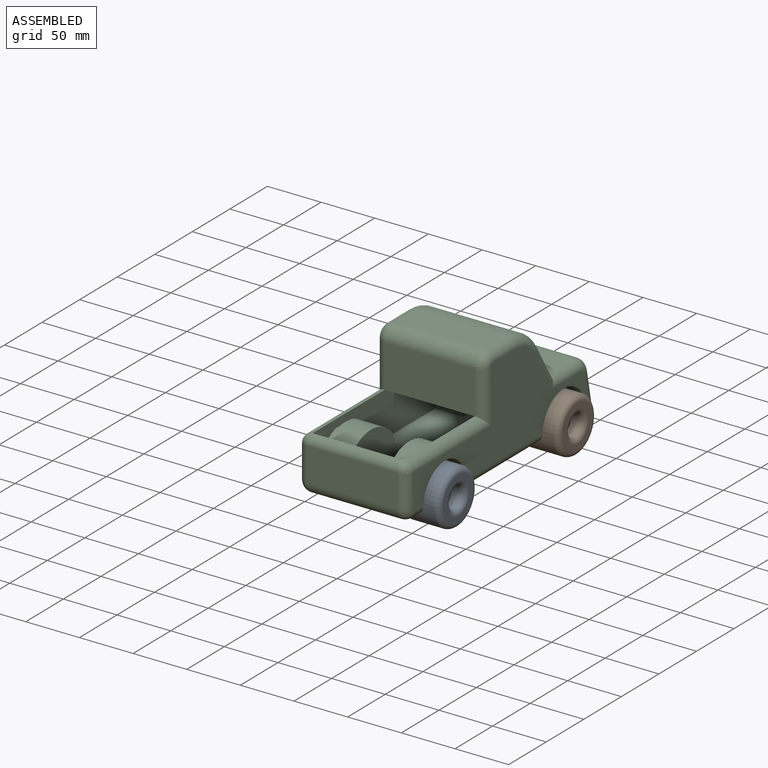
[diagram: assembled view]
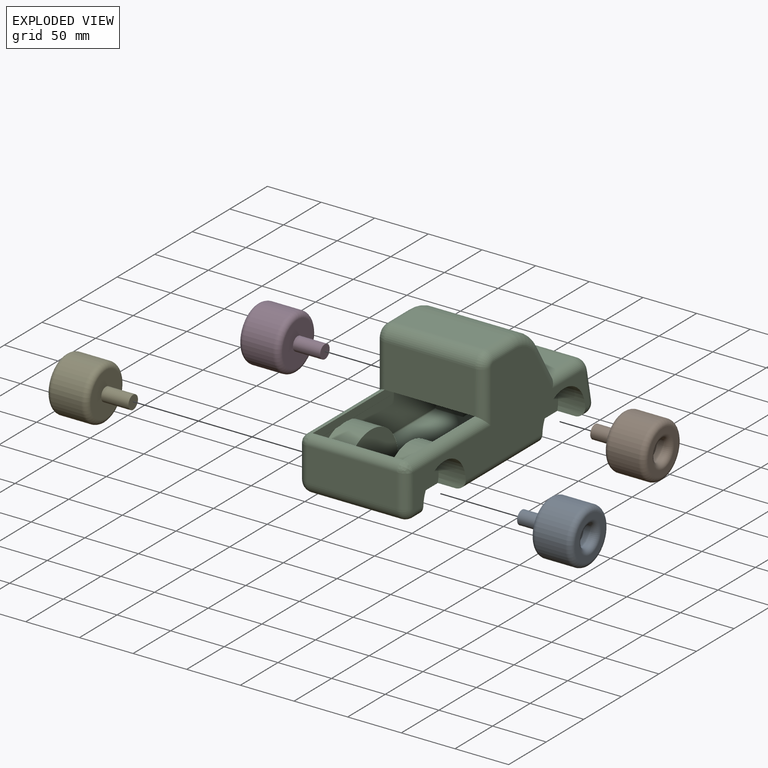
[diagram: exploded view]
GUIDED TOUR — MATED ASSEMBLY (Onshape document 5833278b6b884e10540bb017, AutoMate assembly 5833278b6b884e10540bb017_8e4d6eb2562d53a864982968_b77a20d916181a25f1c98afd_default)

This assembly has 5 components, labeled P0..P4 below (a component is one placed occurrence of a part; the same part can appear more than once), held together by 8 mates. A mate is a constraint between two components; its type names the relative motion it leaves free:
  CYLINDRICAL — leaves both rotation about and translation along the listed axis free,
  PLANAR — leaves sliding in the plane through the listed point (normal = the listed direction) and rotation about that normal free.
Axis/direction vectors are unit vectors and 'through' points are millimeter coordinates, both in the assembly's world frame.

MATES
  1. PLANAR "Planar 3": P2 <-> P3, direction (-1.000, 0.000, 0.000) through (-9.30, 177.85, 35.59) mm
  2. CYLINDRICAL "Cylindrical 1": P2 <-> P0, axis (1.000, 0.000, 0.000) through (41.50, 19.10, 35.59) mm
  3. CYLINDRICAL "Cylindrical 4": P4 <-> P2, axis (1.000, 0.000, 0.000) through (16.10, 19.10, 35.59) mm
  4. PLANAR "Planar 4": P4 <-> P2, direction (1.000, 0.000, 0.000) through (-9.30, 19.10, 35.59) mm
  5. CYLINDRICAL "Cylindrical 3": P3 <-> P2, axis (1.000, 0.000, 0.000) through (16.10, 177.85, 35.59) mm
  6. PLANAR "Planar 1": P2 <-> P0, direction (1.000, 0.000, 0.000) through (41.50, 19.10, 44.24) mm
  7. CYLINDRICAL "Cylindrical 2": P1 <-> P2, axis (-1.000, 0.000, 0.000) through (16.10, 177.85, 35.59) mm
  8. PLANAR "Planar 2": P2 <-> P1, direction (1.000, 0.000, 0.000) through (41.50, 177.85, 44.37) mm

ASSEMBLY ORDER
  1. P2 — the base component [order heuristic]
  2. P4 — core [order heuristic]
  3. P0 [order verified]
  4. P1 [order verified]
  5. P3 [order verified]
Order-tag legend:
  [order verified] — this step's position reverses a verified removal order: the component was checked to insert without passing through the ones already placed.
  [order heuristic] — the first 2 components form the assembly's core: parts whose collision-free extraction could not be verified, listed in mate-graph order.

Of the 5 components, 1 carries the full construction recipe — the FeatureScript program that regenerates the part's solid from scratch; the rest are supplied as boundary geometry only.
Each toured component is shown spotlighted twice — in the assembled view, then in the exploded view, where a leader line traces a displaced component back to its assembled socket (saturated green if recipe-attached, orange if geometry-only; every other component desaturated gray) — followed by its recipe or geometry summary and the mates that hold it.
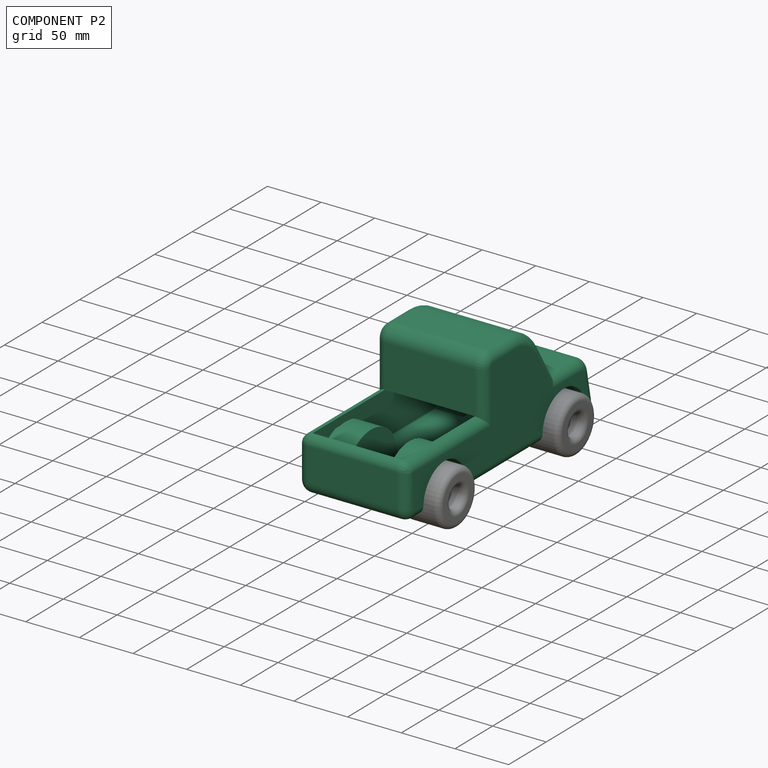
[diagram: component P2 — assembled]
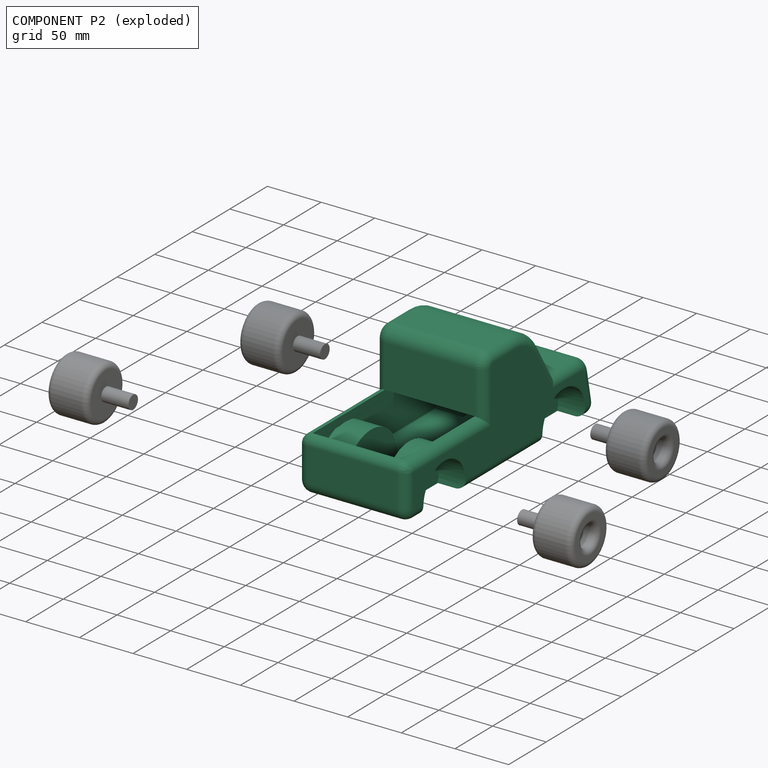
[diagram: component P2 — exploded]
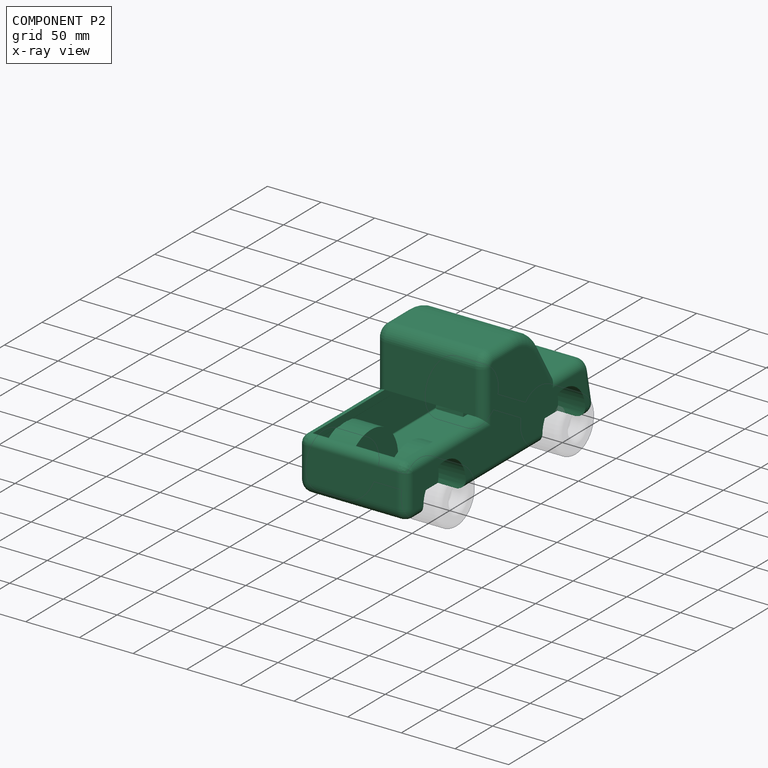
[diagram: component P2 — x-ray view]
COMPONENT P2 — recipe-attached (CADFS 00341112, mesh-verified: the recipe's output STEP matches this component's geometry to below the mesh-comparison resolution (tessellation chordal tolerance ~0.436 mm)).
Held by: PLANAR mate "Planar 3" to P3; CYLINDRICAL mate "Cylindrical 1" to P0; CYLINDRICAL mate "Cylindrical 4" to P4; PLANAR mate "Planar 4" to P4; CYLINDRICAL mate "Cylindrical 3" to P3; PLANAR mate "Planar 1" to P0; CYLINDRICAL mate "Cylindrical 2" to P1; PLANAR mate "Planar 2" to P1.
Construction recipe (FeatureScript — the CAD program that rebuilds this solid; sketch coordinates are in the units given by the * unit suffixes, e.g. mm):

FeatureScript 1549;
import(path : "onshape/std/geometry.fs", version : "1549.0");
import(path : "onshape/std/common.fs", version : "1549.0");
const mm = millimeter;
const VERTEX = EntityType.VERTEX;
const EDGE = EntityType.EDGE;
const FACE = EntityType.FACE;
const BODY = EntityType.BODY;
function v(x, y){return vector(x, y);}
function OD(order){return orderDisambiguation(order);}
function OSD(set){return originalSetDisambiguation(set);}
function TD(topology){return topologyDisambiguation(topology);}
function TDD(query){return trueDependencyDisambiguation(query);}
function sQuery(a, b, c) {return sketchEntityQuery(a, b, c);}

annotation { "Feature Type Name" : "Feature", "Feature Type Description" : "" }
export const myFeature = defineFeature(function(context is Context, id is Id, definition is map)
    precondition{}
    {
        {
            var Q0;
            Q0=qCreatedBy(makeId("Right.planeOp"),FACE);
            var sketch = newSketch(context, id + "F0", { "sketchPlane" : qUnion([Q0])});
            skLineSegment(sketch, "E0.bottom", {"start": v(12.28, 0) * mm, "end": v(242.5, 0) * mm});
            skLineSegment(sketch, "E0.top", {"start": v(7.7, 50.8) * mm, "end": v(103.46, 50.8) * mm});
            skLineSegment(sketch, "E0.left", {"start": v(0, 12.28) * mm, "end": v(0, 43.1) * mm});
            skLineSegment(sketch, "E1.top", {"start": v(144.78, 103.15) * mm, "end": v(115.74, 103.15) * mm});
            skLineSegment(sketch, "E1.right", {"start": v(103.46, 50.8) * mm, "end": v(103.46, 90.86) * mm});
            skLineSegment(sketch, "E2", {"start": v(179.04, 83.9) * mm, "end": v(199.23, 50.8) * mm});
            skLineSegment(sketch, "E3", {"start": v(251.72, 11.28) * mm, "end": v(246.16, 38.78) * mm});
            skArc(sketch, "E4.filletArc", {"start": v(246.16, 38.78) * mm, "mid": v(240.96, 47.41) * mm, "end": v(231.47, 50.8) * mm});
            skArc(sketch, "E5.filletArc", {"start": v(242.5, 0) * mm, "mid": v(249.78, 3.45) * mm, "end": v(251.72, 11.28) * mm});
            skArc(sketch, "E6.filletArc", {"start": v(179.04, 83.9) * mm, "mid": v(164.42, 98) * mm, "end": v(144.78, 103.15) * mm});
            skArc(sketch, "E7.filletArc", {"start": v(115.74, 103.15) * mm, "mid": v(107.06, 99.55) * mm, "end": v(103.46, 90.86) * mm});
            skLineSegment(sketch, "E8.trimOffspring", {"start": v(199.23, 50.8) * mm, "end": v(231.47, 50.8) * mm});
            skPoint(sketch, "E9.visualSharp", {"position": v(0, 0) * mm});
            skArc(sketch, "E9.filletArc", {"start": v(0, 12.28) * mm, "mid": v(3.6, 3.6) * mm, "end": v(12.28, 0) * mm});
            skArc(sketch, "E10.filletArc", {"start": v(7.7, 50.8) * mm, "mid": v(2.26, 48.54) * mm, "end": v(0, 43.1) * mm});
            skSolve(sketch);
        }
        {
            var Q0;
            Q0=makeQuery(id+"F0.imprint","IMPRINT",FACE,{"disambiguationData":[TD([[makeQuery(id+"F0.imprint","IMPRINT",EDGE,{"derivedFrom":sQuery(id+"F0.wireOp",EDGE,"E0.bottom")}),1.0]])]});
            extrude(context, id + "F1", {"entities" : qUnion([Q0]), "depth" : 101.6 * mm});
        }
        {
            var Q0;
            Q0=makeQuery(id+"F1.opExtrude","CAP_FACE",FACE,{"disambiguationData":[OSD([sQuery(id+"F0.wireOp",EDGE,"E0.bottom"),sQuery(id+"F0.wireOp",EDGE,"E0.top"),sQuery(id+"F0.wireOp",EDGE,"E0.left"),sQuery(id+"F0.wireOp",EDGE,"E1.top"),sQuery(id+"F0.wireOp",EDGE,"E1.right"),sQuery(id+"F0.wireOp",EDGE,"E2"),sQuery(id+"F0.wireOp",EDGE,"E3"),sQuery(id+"F0.wireOp",EDGE,"E4.filletArc"),sQuery(id+"F0.wireOp",EDGE,"E5.filletArc"),sQuery(id+"F0.wireOp",EDGE,"E6.filletArc"),sQuery(id+"F0.wireOp",EDGE,"E7.filletArc"),sQuery(id+"F0.wireOp",EDGE,"E8.trimOffspring"),sQuery(id+"F0.wireOp",EDGE,"E9.filletArc"),sQuery(id+"F0.wireOp",EDGE,"E10.filletArc")])],"isStart":false});
            var sketch = newSketch(context, id + "F2", { "sketchPlane" : qUnion([Q0])});
            skLineSegment(sketch, "E11", {"start": v(0, 0) * mm, "end": v(0, 7.62) * mm, "construction": true});
            skLineSegment(sketch, "E12", {"start": v(0, 7.62) * mm, "end": v(50.8, 7.62) * mm, "construction": true});
            skLineSegment(sketch, "E13", {"start": v(50.8, 7.62) * mm, "end": v(209.55, 7.62) * mm, "construction": true});
            skCircle(sketch, "E14", {"center": v(50.8, 7.62) * mm, "radius": 28.26 * mm});
            skCircle(sketch, "E15", {"center": v(209.55, 7.62) * mm, "radius": 28.58 * mm});
            skSolve(sketch);
        }
        {
            var Q0;
            Q0=qSketchRegion(id+"F2",true);
            extrude(context, id + "F3", {"entities" : qUnion([Q0]), "operationType" : NewBodyOperationType.REMOVE, "oppositeDirection" : true, "depth" : 25.4 * mm});
        }
        {
            var Q0;
            Q0=makeQuery(id+"F1.opExtrude","CAP_FACE",FACE,{"disambiguationData":[OSD([sQuery(id+"F0.wireOp",EDGE,"E0.bottom"),sQuery(id+"F0.wireOp",EDGE,"E0.top"),sQuery(id+"F0.wireOp",EDGE,"E0.left"),sQuery(id+"F0.wireOp",EDGE,"E1.top"),sQuery(id+"F0.wireOp",EDGE,"E1.right"),sQuery(id+"F0.wireOp",EDGE,"E2"),sQuery(id+"F0.wireOp",EDGE,"E3"),sQuery(id+"F0.wireOp",EDGE,"E4.filletArc"),sQuery(id+"F0.wireOp",EDGE,"E5.filletArc"),sQuery(id+"F0.wireOp",EDGE,"E6.filletArc"),sQuery(id+"F0.wireOp",EDGE,"E7.filletArc"),sQuery(id+"F0.wireOp",EDGE,"E8.trimOffspring"),sQuery(id+"F0.wireOp",EDGE,"E9.filletArc"),sQuery(id+"F0.wireOp",EDGE,"E10.filletArc")])],"isStart":true});
            var sketch = newSketch(context, id + "F4", { "sketchPlane" : qUnion([Q0])});
            skLineSegment(sketch, "E16", {"start": v(0, 0) * mm, "end": v(0, 7.62) * mm, "construction": true});
            skLineSegment(sketch, "E17", {"start": v(0, 7.62) * mm, "end": v(-50.8, 7.62) * mm, "construction": true});
            skLineSegment(sketch, "E18", {"start": v(-50.8, 7.62) * mm, "end": v(-209.55, 7.62) * mm, "construction": true});
            skCircle(sketch, "E19", {"center": v(-50.8, 7.62) * mm, "radius": 28.58 * mm});
            skCircle(sketch, "E20", {"center": v(-209.55, 7.62) * mm, "radius": 28.58 * mm});
            skSolve(sketch);
        }
        {
            var Q0;
            Q0=qSketchRegion(id+"F4",true);
            extrude(context, id + "F5", {"entities" : qUnion([Q0]), "operationType" : NewBodyOperationType.REMOVE, "oppositeDirection" : true, "depth" : 25.4 * mm});
        }
        {
            var Q0;
            Q0=makeQuery(id+"F5.boolean.opBoolean","COPY",FACE,{"derivedFrom":makeQuery(id+"F5.opExtrude","CAP_FACE",FACE,{"disambiguationData":[OSD([sQuery(id+"F4.wireOp",EDGE,"E20")])],"isStart":false})});
            var sketch = newSketch(context, id + "F6", { "sketchPlane" : qUnion([Q0])});
            skCircle(sketch, "E21", {"center": v(-209.55, 7.62) * mm, "radius": 6.35 * mm});
            skSolve(sketch);
        }
        {
            var Q0;
            Q0=makeQuery(id+"F6.imprint","IMPRINT",FACE,{"disambiguationData":[TD([[makeQuery(id+"F6.imprint","IMPRINT",EDGE,{"derivedFrom":sQuery(id+"F6.wireOp",EDGE,"E21")}),1.0]])]});
            extrude(context, id + "F7", {"entities" : qUnion([Q0]), "operationType" : NewBodyOperationType.REMOVE, "endBound" : BoundingType.UP_TO_NEXT, "oppositeDirection" : true, "depth" : 25.4 * mm});
        }
        {
            var Q0;
            Q0=makeQuery(id+"F5.boolean.opBoolean","COPY",FACE,{"derivedFrom":makeQuery(id+"F5.opExtrude","CAP_FACE",FACE,{"disambiguationData":[OSD([sQuery(id+"F4.wireOp",EDGE,"E19")])],"isStart":false})});
            var sketch = newSketch(context, id + "F8", { "sketchPlane" : qUnion([Q0])});
            skCircle(sketch, "E22", {"center": v(-50.8, 7.62) * mm, "radius": 6.35 * mm});
            skSolve(sketch);
        }
        {
            var Q0;
            Q0=makeQuery(id+"F8.imprint","IMPRINT",FACE,{"disambiguationData":[TD([[makeQuery(id+"F8.imprint","IMPRINT",EDGE,{"derivedFrom":sQuery(id+"F8.wireOp",EDGE,"E22")}),1.0]])]});
            extrude(context, id + "F9", {"entities" : qUnion([Q0]), "operationType" : NewBodyOperationType.REMOVE, "endBound" : BoundingType.UP_TO_NEXT, "oppositeDirection" : true, "depth" : 25.4 * mm});
        }
        {
            var Q0;
            Q0=makeQuery(id+"F1.opExtrude","CAP_EDGE",EDGE,{"disambiguationData":[OSD([sQuery(id+"F0.wireOp",EDGE,"E2")])],"isStart":true});
            var Q1;
            Q1=makeQuery(id+"F1.opExtrude","CAP_EDGE",EDGE,{"disambiguationData":[OSD([sQuery(id+"F0.wireOp",EDGE,"E8.trimOffspring")])],"isStart":true});
            var Q2;
            Q2=makeQuery(id+"F1.opExtrude","CAP_EDGE",EDGE,{"disambiguationData":[OSD([sQuery(id+"F0.wireOp",EDGE,"E0.top")])],"isStart":true});
            var Q3;
            {var subQ0=sQuery(id+"F0.wireOp",EDGE,"E0.bottom");Q3=makeQuery(id+"F5.boolean.opBoolean","SPLIT",EDGE,{"disambiguationData":[TD([makeQuery(id+"F1.opExtrude","SWEPT_FACE",FACE,{"disambiguationData":[OSD([subQ0])]}),makeQuery(id+"F1.opExtrude","CAP_FACE",FACE,{"disambiguationData":[OSD([subQ0,sQuery(id+"F0.wireOp",EDGE,"E0.top"),sQuery(id+"F0.wireOp",EDGE,"E0.left"),sQuery(id+"F0.wireOp",EDGE,"E1.top"),sQuery(id+"F0.wireOp",EDGE,"E1.right"),sQuery(id+"F0.wireOp",EDGE,"E2"),sQuery(id+"F0.wireOp",EDGE,"E3"),sQuery(id+"F0.wireOp",EDGE,"E4.filletArc"),sQuery(id+"F0.wireOp",EDGE,"E5.filletArc"),sQuery(id+"F0.wireOp",EDGE,"E6.filletArc"),sQuery(id+"F0.wireOp",EDGE,"E7.filletArc"),sQuery(id+"F0.wireOp",EDGE,"E8.trimOffspring"),sQuery(id+"F0.wireOp",EDGE,"E9.filletArc"),sQuery(id+"F0.wireOp",EDGE,"E10.filletArc")])],"isStart":true}),makeQuery(id+"F5.opExtrude","SWEPT_FACE",FACE,{"disambiguationData":[OSD([sQuery(id+"F4.wireOp",EDGE,"E19")])]}),makeQuery(id+"F5.opExtrude","SWEPT_FACE",FACE,{"disambiguationData":[OSD([sQuery(id+"F4.wireOp",EDGE,"E20")])]})])],"derivedFrom":makeQuery(id+"F1.opExtrude","CAP_EDGE",EDGE,{"disambiguationData":[OSD([subQ0])],"isStart":true})});}
            var Q4;
            Q4=makeQuery(id+"F1.opExtrude","CAP_EDGE",EDGE,{"disambiguationData":[OSD([sQuery(id+"F0.wireOp",EDGE,"E0.top")])],"isStart":false});
            var Q5;
            Q5=makeQuery(id+"F1.opExtrude","CAP_EDGE",EDGE,{"disambiguationData":[OSD([sQuery(id+"F0.wireOp",EDGE,"E1.right")])],"isStart":false});
            var Q6;
            Q6=makeQuery(id+"F1.opExtrude","CAP_EDGE",EDGE,{"disambiguationData":[OSD([sQuery(id+"F0.wireOp",EDGE,"E8.trimOffspring")])],"isStart":false});
            var Q7;
            {var subQ0=sQuery(id+"F0.wireOp",EDGE,"E0.bottom");Q7=makeQuery(id+"F3.boolean.opBoolean","SPLIT",EDGE,{"disambiguationData":[TD([makeQuery(id+"F1.opExtrude","SWEPT_FACE",FACE,{"disambiguationData":[OSD([subQ0])]}),makeQuery(id+"F1.opExtrude","CAP_FACE",FACE,{"disambiguationData":[OSD([subQ0,sQuery(id+"F0.wireOp",EDGE,"E0.top"),sQuery(id+"F0.wireOp",EDGE,"E0.left"),sQuery(id+"F0.wireOp",EDGE,"E1.top"),sQuery(id+"F0.wireOp",EDGE,"E1.right"),sQuery(id+"F0.wireOp",EDGE,"E2"),sQuery(id+"F0.wireOp",EDGE,"E3"),sQuery(id+"F0.wireOp",EDGE,"E4.filletArc"),sQuery(id+"F0.wireOp",EDGE,"E5.filletArc"),sQuery(id+"F0.wireOp",EDGE,"E6.filletArc"),sQuery(id+"F0.wireOp",EDGE,"E7.filletArc"),sQuery(id+"F0.wireOp",EDGE,"E8.trimOffspring"),sQuery(id+"F0.wireOp",EDGE,"E9.filletArc"),sQuery(id+"F0.wireOp",EDGE,"E10.filletArc")])],"isStart":false}),makeQuery(id+"F3.opExtrude","SWEPT_FACE",FACE,{"disambiguationData":[OSD([sQuery(id+"F2.wireOp",EDGE,"E14")])]}),makeQuery(id+"F3.opExtrude","SWEPT_FACE",FACE,{"disambiguationData":[OSD([sQuery(id+"F2.wireOp",EDGE,"E15")])]})])],"derivedFrom":makeQuery(id+"F1.opExtrude","CAP_EDGE",EDGE,{"disambiguationData":[OSD([subQ0])],"isStart":false})});}
            fillet(context, id + "F10", {"entities" : qUnion([Q0, Q1, Q2, Q3, Q4, Q5, Q6, Q7]), "radius" : 8.9 * mm, "tangentPropagation" : true, "allowEdgeOverflow" : false});
        }
        {
            var Q0;
            Q0=makeQuery(id+"F1.opExtrude","SWEPT_FACE",FACE,{"disambiguationData":[OSD([sQuery(id+"F0.wireOp",EDGE,"E0.top")])]});
            shell(context, id + "F11", {"entities" : qUnion([Q0]), "thickness" : 7.62 * mm});
        }
    });
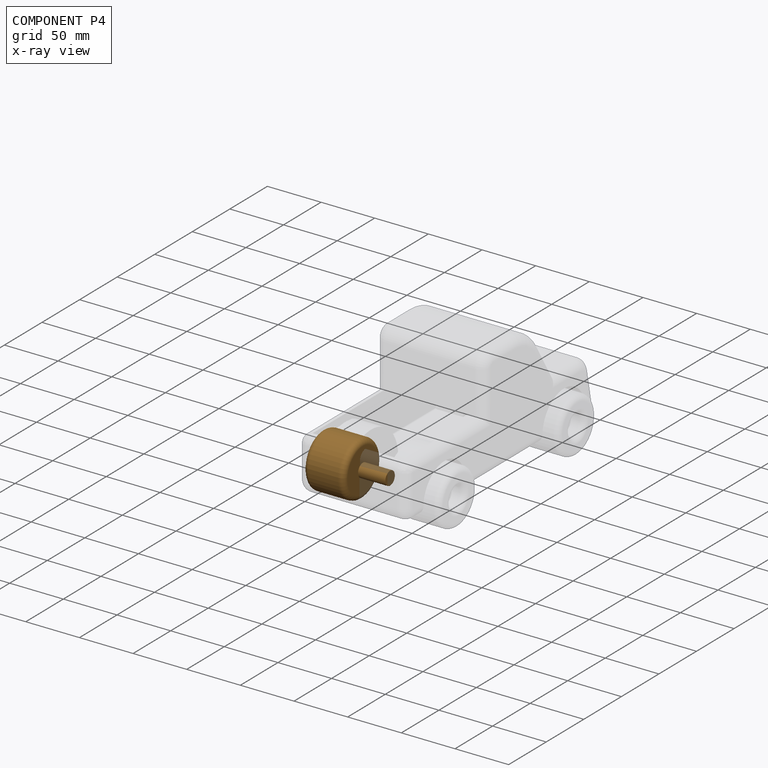
[diagram: component P4 — x-ray view]
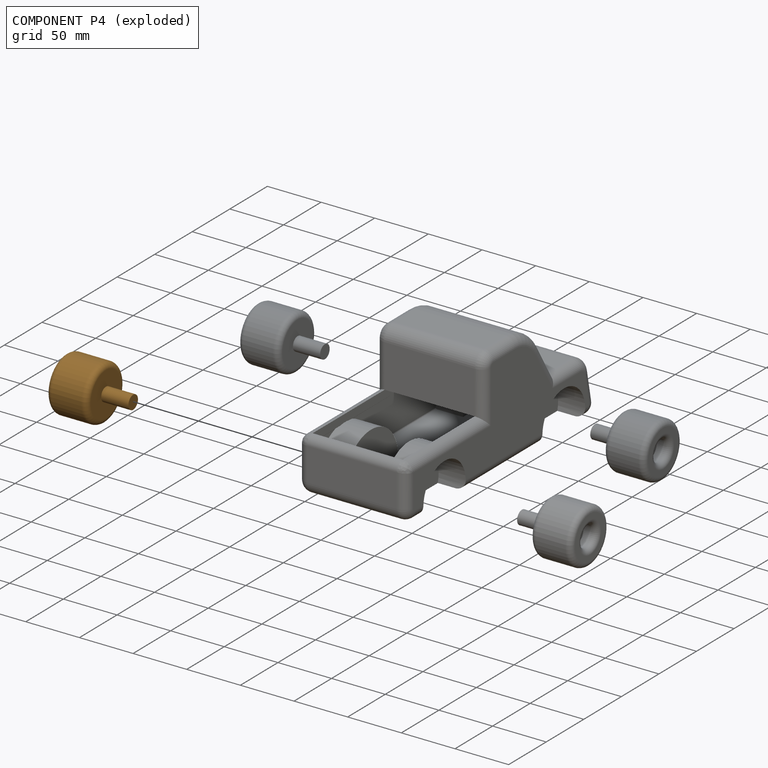
[diagram: component P4 — exploded]
COMPONENT P4 — geometry summary (no construction recipe available for this part):
  bounding box: 63.5 x 55.0 x 55.0 mm
  B-rep topology: 1 solid, 10 faces, 32 edges
  volume: 74760 mm^3 (39% of its bounding box)
  symmetry: revolution-symmetric about the x axis through its bounding-box center; mirror-symmetric across its y mid-plane, z mid-plane
Held by: CYLINDRICAL mate "Cylindrical 4" to P2; PLANAR mate "Planar 4" to P2.
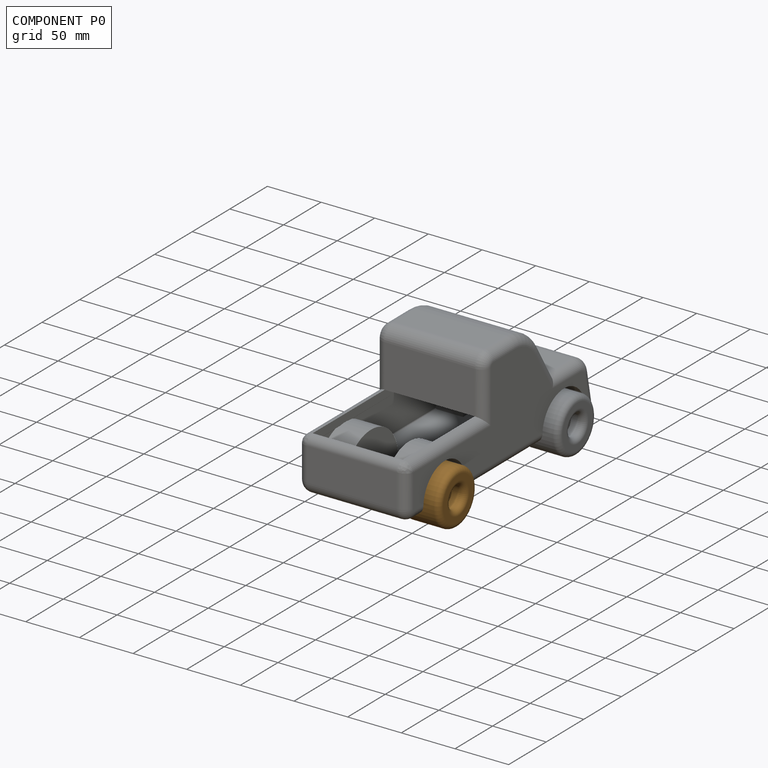
[diagram: component P0 — assembled]
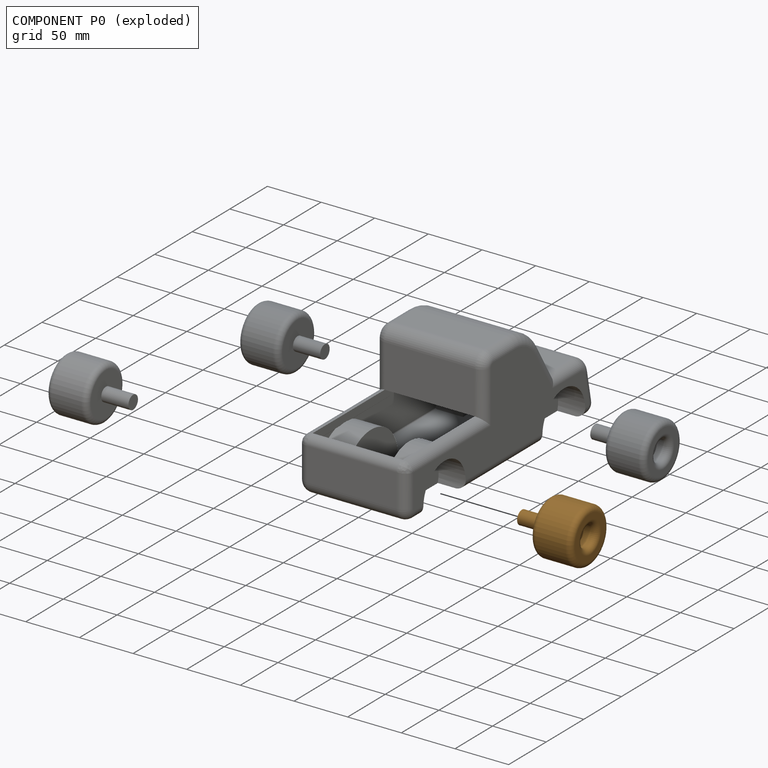
[diagram: component P0 — exploded]
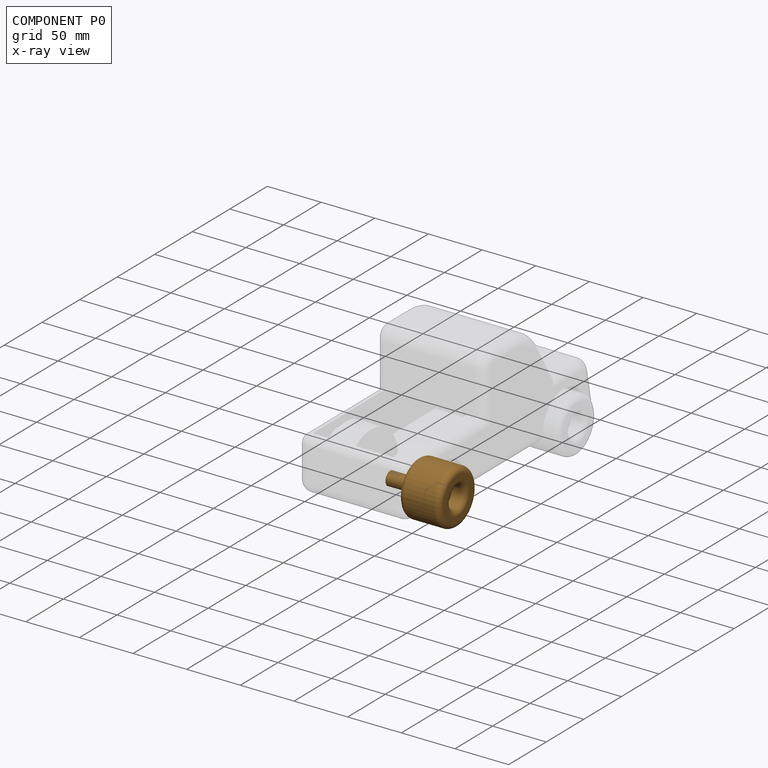
[diagram: component P0 — x-ray view]
COMPONENT P0 — geometry summary (no construction recipe available for this part):
  bounding box: 63.5 x 55.0 x 55.0 mm
  B-rep topology: 1 solid, 10 faces, 32 edges
  volume: 74760 mm^3 (39% of its bounding box)
  symmetry: revolution-symmetric about the x axis through its bounding-box center; mirror-symmetric across its y mid-plane, z mid-plane
Held by: CYLINDRICAL mate "Cylindrical 1" to P2; PLANAR mate "Planar 1" to P2.
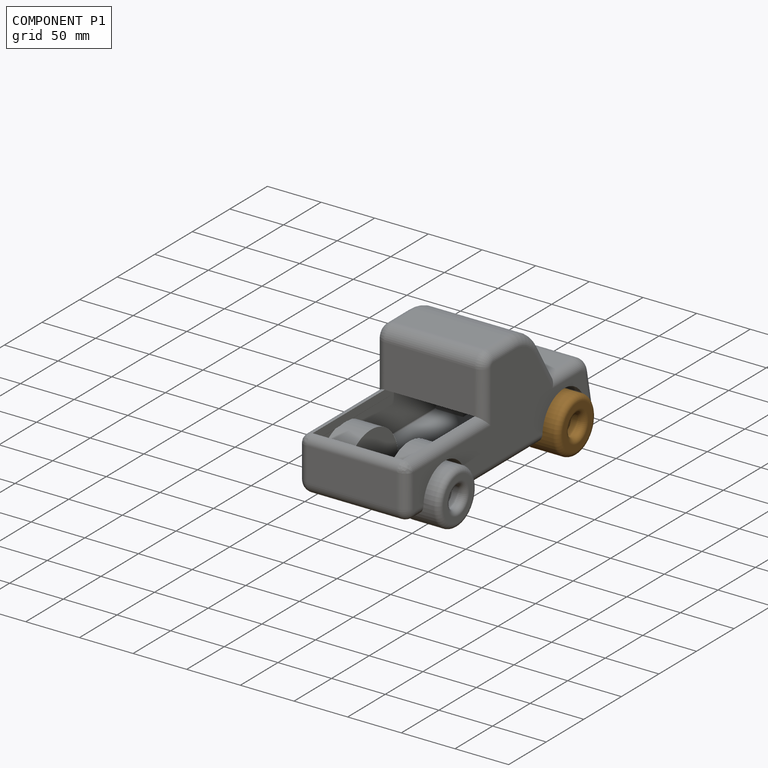
[diagram: component P1 — assembled]
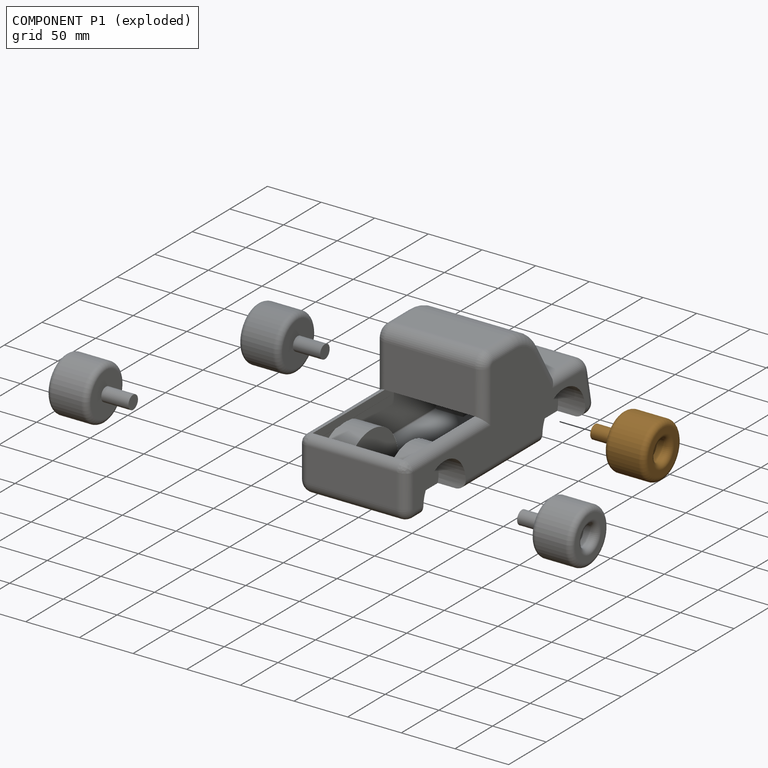
[diagram: component P1 — exploded]
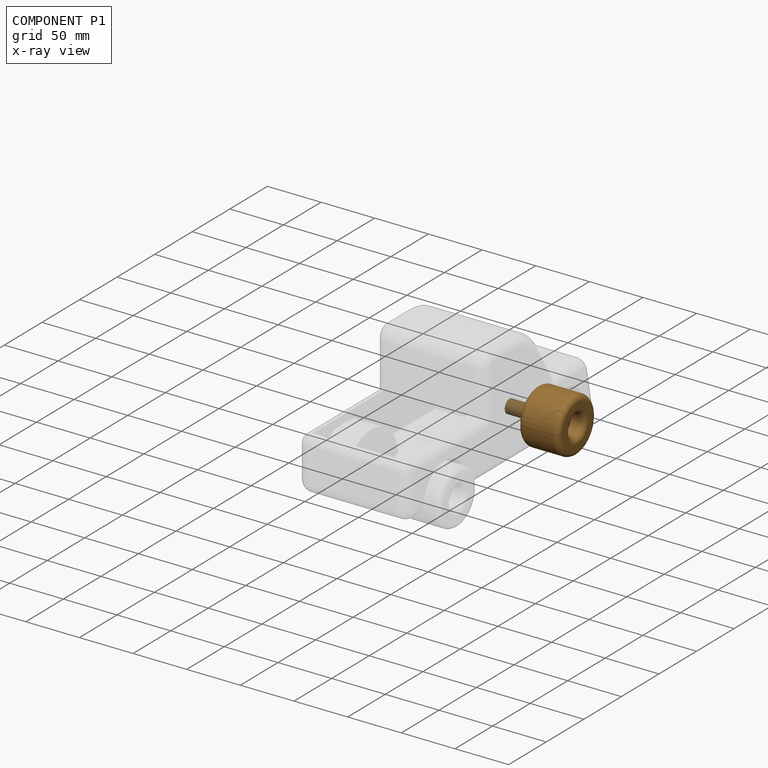
[diagram: component P1 — x-ray view]
COMPONENT P1 — geometry summary (no construction recipe available for this part):
  bounding box: 63.5 x 55.0 x 55.0 mm
  B-rep topology: 1 solid, 10 faces, 32 edges
  volume: 74760 mm^3 (39% of its bounding box)
  symmetry: revolution-symmetric about the x axis through its bounding-box center; mirror-symmetric across its y mid-plane, z mid-plane
Held by: CYLINDRICAL mate "Cylindrical 2" to P2; PLANAR mate "Planar 2" to P2.
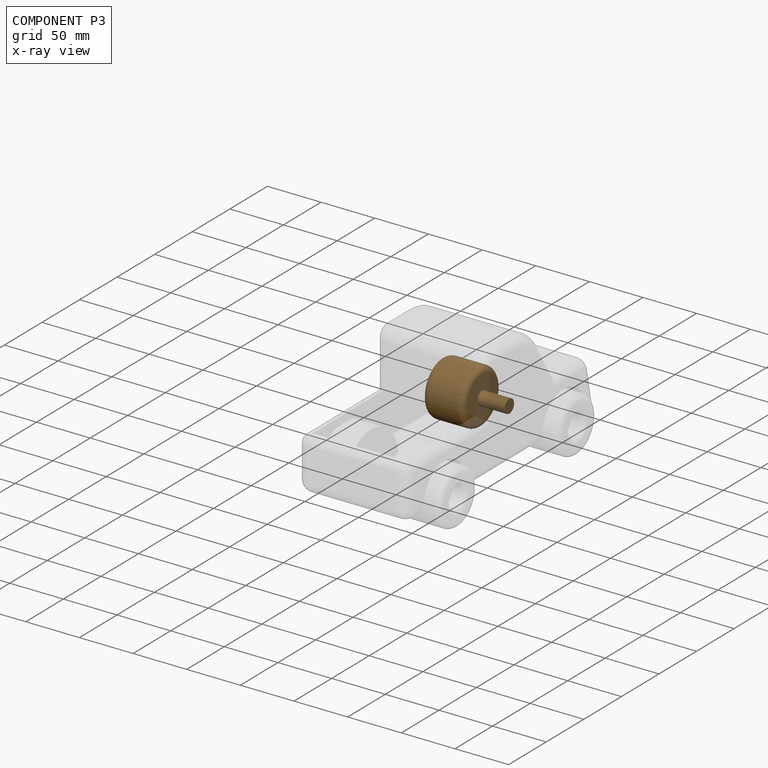
[diagram: component P3 — x-ray view]
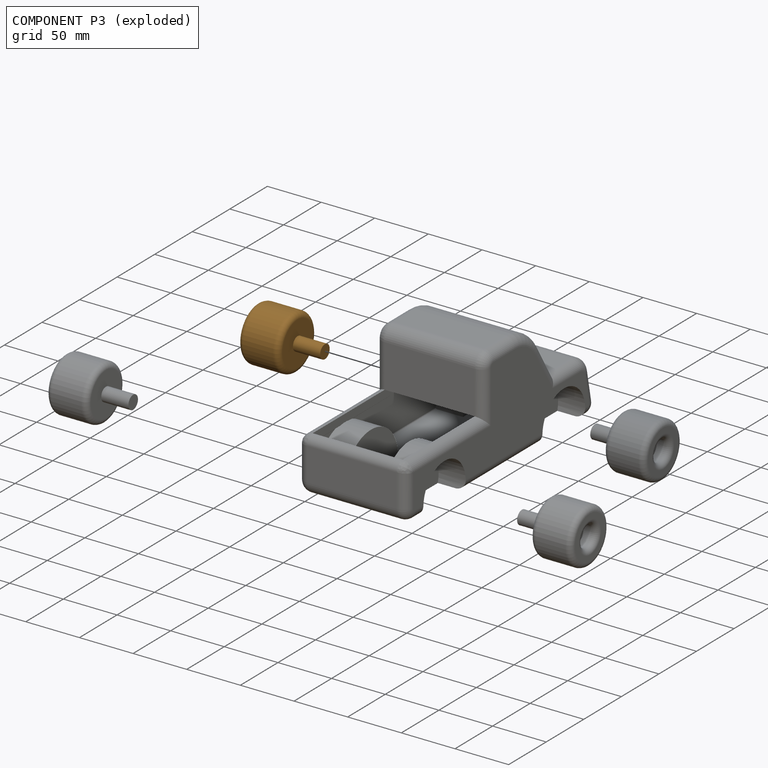
[diagram: component P3 — exploded]
COMPONENT P3 — geometry summary (no construction recipe available for this part):
  bounding box: 63.5 x 55.0 x 55.0 mm
  B-rep topology: 1 solid, 10 faces, 32 edges
  volume: 74760 mm^3 (39% of its bounding box)
  symmetry: revolution-symmetric about the x axis through its bounding-box center; mirror-symmetric across its y mid-plane, z mid-plane
Held by: PLANAR mate "Planar 3" to P2; CYLINDRICAL mate "Cylindrical 3" to P2.
PROVENANCE & LICENSES
Assembly (occurrences, transforms, mates, per-part STEP geometry): AutoMate dataset, Zenodo record 7776208, CC0.
Construction recipes: CADFS (HuggingFace VladPyatov/CADFS, CC-BY-4.0, layered over the ABC dataset), FeatureScript reconstruction programs keyed by ABC model id.
Join: ABC meta listings map ABC model id -> Onshape documentId; within a shared document, parts are matched by geometric signature (bounding-box dims + volume at 0.1% relative tolerance, exact B-rep face/solid counts).
Verification: 1 of this assembly's 5 components carries a recipe attachment, and every attachment is mesh-verified: the CADFS STEP and the AutoMate member STEP were compared as meshes in their shared local frame (symmetric sampled-point-to-mesh distance); worst across the 1 attachment: below the mesh-comparison resolution (tessellation chordal tolerance ~0.436 mm) on a 291 mm part.
Renders: orthographic iso camera (az 35 / el 25); the floor grid conveys scale (grid pitch printed in each image; no ruler). In the exploded view each component is displaced by its stored offset vector: the offsets alone carry the explosion direction (mate normal/axis signs are not orientation cues and do not encode it), and separation distances are assigned per mate-chain, not proportionally to assembly-order depth.
